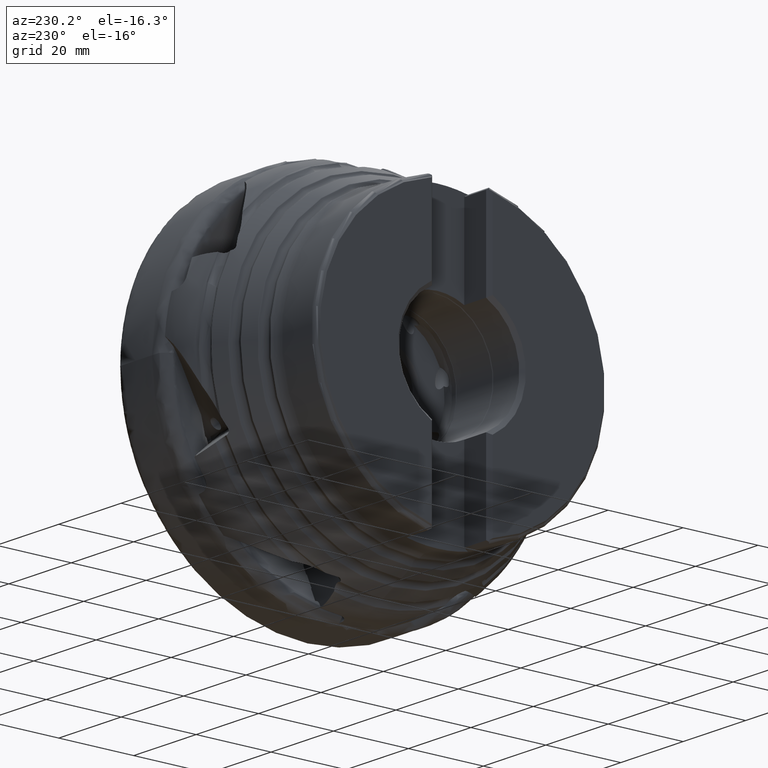
[diagram: clean part render]
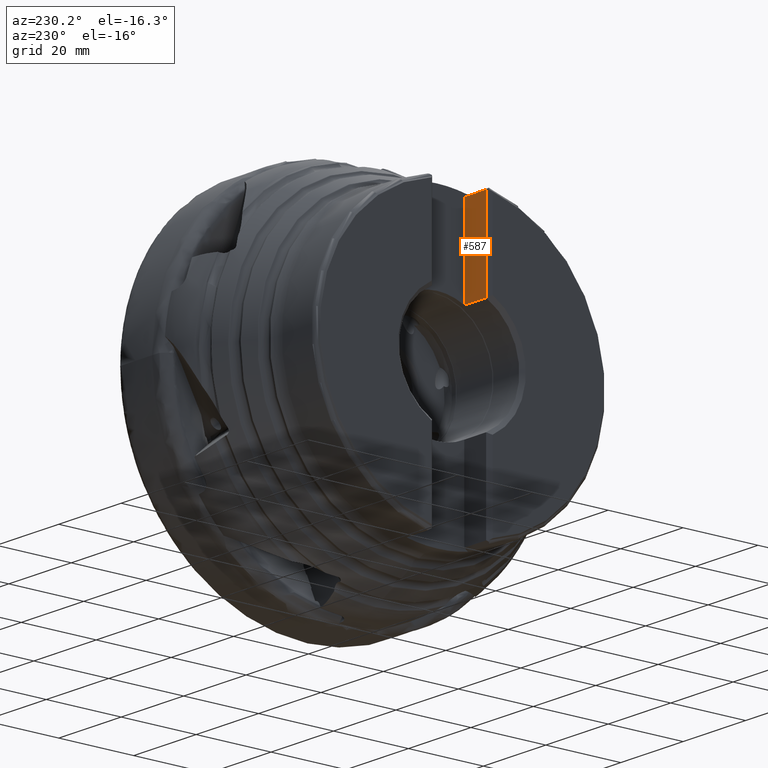
[diagram: same view with one face highlighted and labeled with its STEP entity id]
A machine part, auxiliary view. The second image highlights one B-rep face of the part: STEP entity #587.
In plain terms, the highlighted planar face has unit normal (0, -1, 0).
Its self-contained STEP definition (entity closure, byte-faithful):
#198 = CARTESIAN_POINT ( 'NONE',  ( -41.24999999999999300, -7.200000000000004600, -40.00000000000000000 ) ) ;
#302 = CARTESIAN_POINT ( 'NONE',  ( 8.921435019309322100E-016, -7.200000000000000200, 14.37239106759900800 ) ) ;
#587 = ADVANCED_FACE ( 'NONE', ( #10810 ), #1534, .F. ) ;
#673 = CARTESIAN_POINT ( 'NONE',  ( -41.24999999999999300, -7.200000000000004600, 37.47303783587899800 ) ) ;
#1339 = VECTOR ( 'NONE', #17918, 1000.000000000000000 ) ;
#1534 = PLANE ( 'NONE',  #3559 ) ;
#1938 = CARTESIAN_POINT ( 'NONE',  ( -48.24999999999997200, -7.200000000000005500, -40.00000000000000000 ) ) ;
#2081 = ORIENTED_EDGE ( 'NONE', *, *, #18859, .F. ) ;
#2916 = LINE ( 'NONE', #3003, #7066 ) ;
#3003 = CARTESIAN_POINT ( 'NONE',  ( -41.24999999999999300, -7.200000000000004600, 37.47303783587899800 ) ) ;
#3013 = EDGE_LOOP ( 'NONE', ( #14601, #14162, #8603, #2081 ) ) ;
#3042 = CARTESIAN_POINT ( 'NONE',  ( -48.24999999999997200, -7.200000000000005500, 14.37239106759900100 ) ) ;
#3170 = DIRECTION ( 'NONE',  ( 1.000000000000000000, 1.239088197126294800E-016, 0.0000000000000000000 ) ) ;
#3246 = VERTEX_POINT ( 'NONE', #3042 ) ;
#3559 = AXIS2_PLACEMENT_3D ( 'NONE', #8341, #20696, #3170 ) ;
#4742 = EDGE_CURVE ( 'NONE', #19928, #8913, #2916, .T. ) ;
#6027 = LINE ( 'NONE', #302, #1339 ) ;
#6329 = LINE ( 'NONE', #1938, #6861 ) ;
#6531 = EDGE_CURVE ( 'NONE', #9662, #8913, #18140, .T. ) ;
#6861 = VECTOR ( 'NONE', #12464, 1000.000000000000000 ) ;
#7066 = VECTOR ( 'NONE', #13753, 1000.000000000000000 ) ;
#8341 = CARTESIAN_POINT ( 'NONE',  ( -48.24999999999997200, -7.200000000000005500, -40.00000000000000000 ) ) ;
#8603 = ORIENTED_EDGE ( 'NONE', *, *, #6531, .F. ) ;
#8913 = VERTEX_POINT ( 'NONE', #673 ) ;
#9284 = EDGE_CURVE ( 'NONE', #3246, #19928, #6329, .T. ) ;
#9662 = VERTEX_POINT ( 'NONE', #17595 ) ;
#10077 = VECTOR ( 'NONE', #12643, 1000.000000000000000 ) ;
#10810 = FACE_OUTER_BOUND ( 'NONE', #3013, .T. ) ;
#12464 = DIRECTION ( 'NONE',  ( -0.0000000000000000000, -0.0000000000000000000, 1.000000000000000000 ) ) ;
#12643 = DIRECTION ( 'NONE',  ( -0.0000000000000000000, -0.0000000000000000000, 1.000000000000000000 ) ) ;
#13753 = DIRECTION ( 'NONE',  ( 1.000000000000000000, 1.239088197126294800E-016, 2.654026406738391300E-017 ) ) ;
#14162 = ORIENTED_EDGE ( 'NONE', *, *, #4742, .T. ) ;
#14601 = ORIENTED_EDGE ( 'NONE', *, *, #9284, .T. ) ;
#17473 = CARTESIAN_POINT ( 'NONE',  ( -48.24999999999997200, -7.200000000000006400, 37.47303783587899800 ) ) ;
#17595 = CARTESIAN_POINT ( 'NONE',  ( -41.24999999999999300, -7.200000000000000200, 14.37239106759900800 ) ) ;
#17918 = DIRECTION ( 'NONE',  ( 1.000000000000000000, -0.0000000000000000000, -0.0000000000000000000 ) ) ;
#18140 = LINE ( 'NONE', #198, #10077 ) ;
#18859 = EDGE_CURVE ( 'NONE', #3246, #9662, #6027, .T. ) ;
#19928 = VERTEX_POINT ( 'NONE', #17473 ) ;
#20696 = DIRECTION ( 'NONE',  ( 1.239088197126294800E-016, -1.000000000000000000, 0.0000000000000000000 ) ) ;